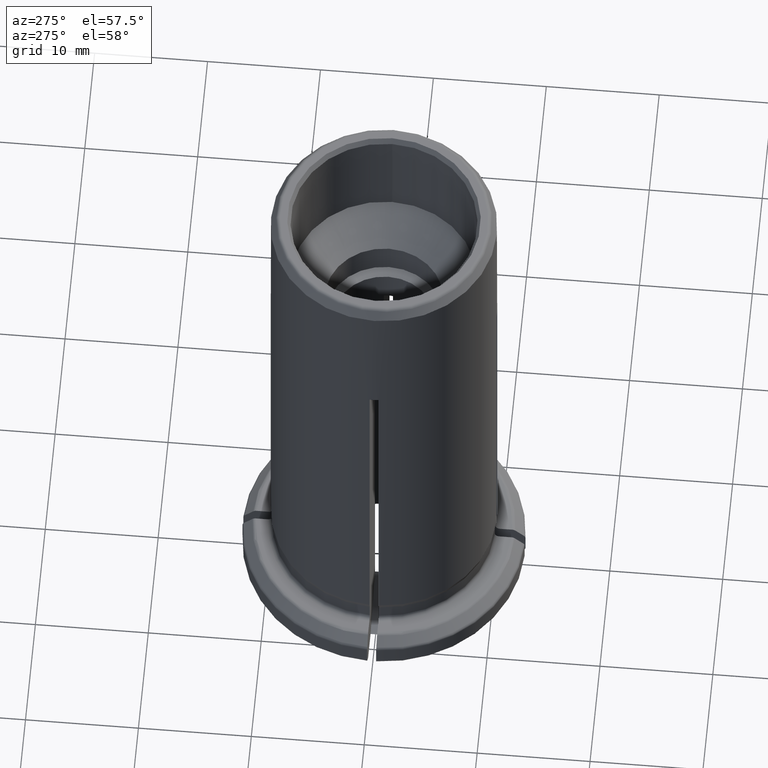
[diagram: clean part render]
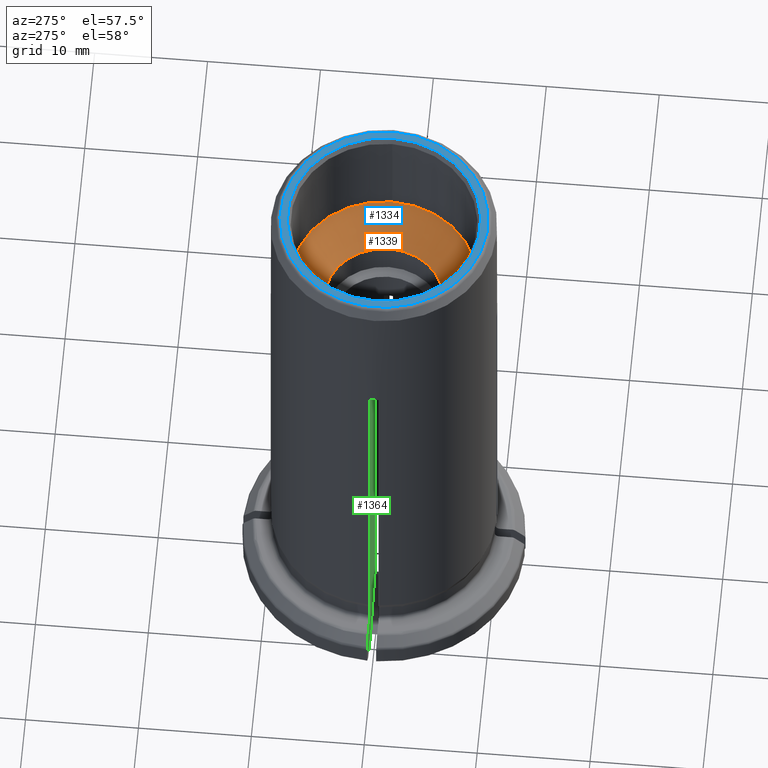
[diagram: same view with three faces highlighted in distinct colors, each labeled with its STEP entity id]
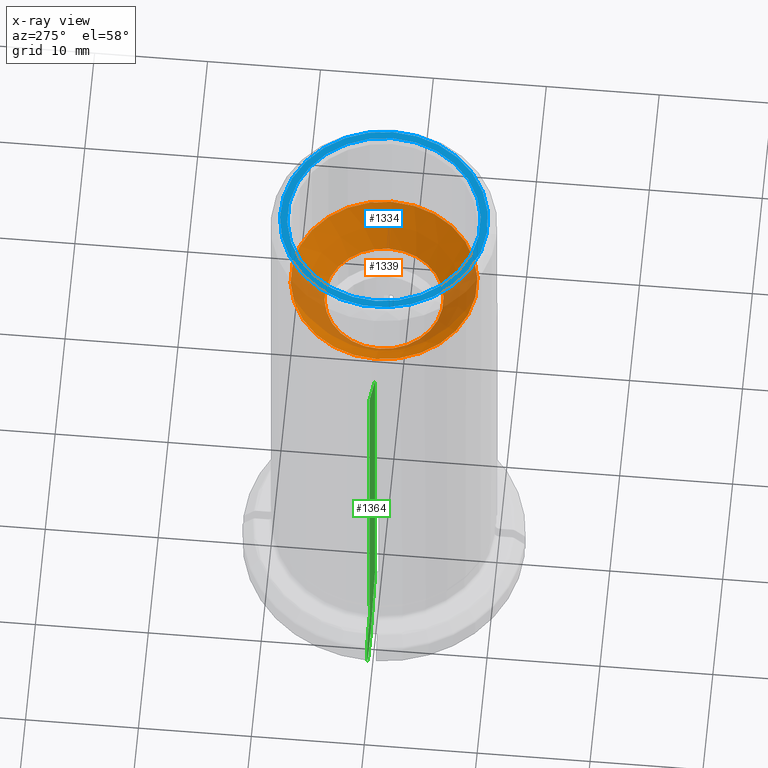
[diagram: x-ray of the same camera — body ghosted, the three highlighted faces saturated]
A machine part, auxiliary view with three faces highlighted in distinct colors.
The next image is the same camera in x-ray (body ghosted, the three faces saturated) — at least one of them is partly hidden behind the body in this view.
Their STEP definitions:

[orange] entity #1339 — the highlighted conical surface has half-angle 45 deg.
#467=ORIENTED_EDGE('',*,*,#842,.T.);
#468=ORIENTED_EDGE('',*,*,#843,.F.);
#842=EDGE_CURVE('',#1013,#1013,#1092,.F.);
#843=EDGE_CURVE('',#1014,#1014,#1093,.T.);
#1013=VERTEX_POINT('',#2352);
#1014=VERTEX_POINT('',#2354);
#1092=CIRCLE('',#1485,5.25);
#1093=CIRCLE('',#1486,8.25);
#1150=EDGE_LOOP('',(#467));
#1151=EDGE_LOOP('',(#468));
#1240=FACE_BOUND('',#1150,.T.);
#1241=FACE_BOUND('',#1151,.T.);
#1291=CONICAL_SURFACE('',#1484,8.25,0.785398163397448);
#1339=ADVANCED_FACE('',(#1240,#1241),#1291,.F.);
#1484=AXIS2_PLACEMENT_3D('',#2350,#1764,#1765);
#1485=AXIS2_PLACEMENT_3D('',#2351,#1766,#1767);
#1486=AXIS2_PLACEMENT_3D('',#2353,#1768,#1769);
#1764=DIRECTION('',(0.,0.,1.));
#1765=DIRECTION('',(-1.,0.,0.));
#1766=DIRECTION('',(0.,0.,1.));
#1767=DIRECTION('',(1.,0.,0.));
#1768=DIRECTION('',(0.,0.,-1.));
#1769=DIRECTION('',(-1.,0.,0.));
#2350=CARTESIAN_POINT('',(0.,0.,40.));
#2351=CARTESIAN_POINT('',(0.,0.,37.));
#2352=CARTESIAN_POINT('',(5.25,0.,37.));
#2353=CARTESIAN_POINT('',(0.,0.,40.));
#2354=CARTESIAN_POINT('',(-8.25,0.,40.));

[blue] entity #1334 — the highlighted planar face has unit normal (0, 0, 1).
#35=PLANE('',#1472);
#449=ORIENTED_EDGE('',*,*,#827,.T.);
#450=ORIENTED_EDGE('',*,*,#828,.T.);
#827=EDGE_CURVE('',#1001,#1001,#1085,.T.);
#828=EDGE_CURVE('',#1002,#1002,#1086,.F.);
#1001=VERTEX_POINT('',#2314);
#1002=VERTEX_POINT('',#2316);
#1085=CIRCLE('',#1473,9.18397459621556);
#1086=CIRCLE('',#1474,8.53867513459482);
#1144=EDGE_LOOP('',(#449));
#1145=EDGE_LOOP('',(#450));
#1234=FACE_BOUND('',#1144,.T.);
#1235=FACE_BOUND('',#1145,.T.);
#1334=ADVANCED_FACE('',(#1234,#1235),#35,.T.);
#1472=AXIS2_PLACEMENT_3D('',#2312,#1734,#1735);
#1473=AXIS2_PLACEMENT_3D('',#2313,#1736,#1737);
#1474=AXIS2_PLACEMENT_3D('',#2315,#1738,#1739);
#1734=DIRECTION('',(0.,0.,1.));
#1735=DIRECTION('',(1.,0.,0.));
#1736=DIRECTION('',(0.,0.,1.));
#1737=DIRECTION('',(1.,0.,0.));
#1738=DIRECTION('',(0.,0.,1.));
#1739=DIRECTION('',(1.,0.,0.));
#2312=CARTESIAN_POINT('',(0.,0.,50.));
#2313=CARTESIAN_POINT('',(0.,0.,50.));
#2314=CARTESIAN_POINT('',(9.18397459621556,0.,50.));
#2315=CARTESIAN_POINT('',(0.,0.,50.));
#2316=CARTESIAN_POINT('',(8.53867513459482,0.,50.));

[green] entity #1364 — the highlighted planar face has unit normal (-0, 1, 0).
#48=PLANE('',#1522);
#66=LINE('',#2154,#134);
#68=LINE('',#2172,#136);
#70=LINE('',#2178,#138);
#74=LINE('',#2272,#142);
#89=LINE('',#2428,#157);
#104=LINE('',#2460,#172);
#114=LINE('',#2483,#182);
#117=LINE('',#2487,#185);
#134=VECTOR('',#1648,1000.);
#136=VECTOR('',#1658,1000.);
#138=VECTOR('',#1664,1000.);
#142=VECTOR('',#1708,1000.);
#157=VECTOR('',#1809,1000.);
#172=VECTOR('',#1834,1000.);
#182=VECTOR('',#1866,1000.);
#185=VECTOR('',#1871,1000.);
#257=B_SPLINE_CURVE_WITH_KNOTS('',3,(#2124,#2125,#2126,#2127),
 .UNSPECIFIED.,.F.,.F.,(4,4),(0.0150523263753517,0.0156319134518823),
 .UNSPECIFIED.);
#259=B_SPLINE_CURVE_WITH_KNOTS('',3,(#2139,#2140,#2141,#2142),
 .UNSPECIFIED.,.F.,.F.,(4,4),(0.00233290544052612,0.00235797169027483),
 .UNSPECIFIED.);
#261=B_SPLINE_CURVE_WITH_KNOTS('',3,(#2160,#2161,#2162,#2163),
 .UNSPECIFIED.,.F.,.F.,(4,4),(0.00206367511561203,0.00268878382623626),
 .UNSPECIFIED.);
#263=B_SPLINE_CURVE_WITH_KNOTS('',3,(#2187,#2188,#2189,#2190),
 .UNSPECIFIED.,.F.,.F.,(4,4),(0.0119547672399306,0.0131793750144806),
 .UNSPECIFIED.);
#265=B_SPLINE_CURVE_WITH_KNOTS('',3,(#2199,#2200,#2201,#2202),
 .UNSPECIFIED.,.F.,.F.,(4,4),(0.0136580949055352,0.0147412372652292),
 .UNSPECIFIED.);
#267=B_SPLINE_CURVE_WITH_KNOTS('',3,(#2214,#2215,#2216,#2217),
 .UNSPECIFIED.,.F.,.F.,(4,4),(0.00226717180244416,0.00257932498733452),
 .UNSPECIFIED.);
#269=B_SPLINE_CURVE_WITH_KNOTS('',3,(#2223,#2224,#2225,#2226),
 .UNSPECIFIED.,.F.,.F.,(4,4),(0.00242430261798408,0.00273669044194609),
 .UNSPECIFIED.);
#271=B_SPLINE_CURVE_WITH_KNOTS('',3,(#2232,#2233,#2234,#2235),
 .UNSPECIFIED.,.F.,.F.,(4,4),(0.00237989966331175,0.00269207607619775),
 .UNSPECIFIED.);
#625=ORIENTED_EDGE('',*,*,#896,.F.);
#626=ORIENTED_EDGE('',*,*,#882,.T.);
#627=ORIENTED_EDGE('',*,*,#765,.T.);
#628=ORIENTED_EDGE('',*,*,#773,.T.);
#629=ORIENTED_EDGE('',*,*,#776,.T.);
#630=ORIENTED_EDGE('',*,*,#779,.T.);
#631=ORIENTED_EDGE('',*,*,#797,.T.);
#632=ORIENTED_EDGE('',*,*,#789,.T.);
#633=ORIENTED_EDGE('',*,*,#795,.T.);
#634=ORIENTED_EDGE('',*,*,#782,.T.);
#635=ORIENTED_EDGE('',*,*,#793,.T.);
#636=ORIENTED_EDGE('',*,*,#786,.T.);
#637=ORIENTED_EDGE('',*,*,#769,.T.);
#638=ORIENTED_EDGE('',*,*,#863,.F.);
#639=ORIENTED_EDGE('',*,*,#893,.F.);
#640=ORIENTED_EDGE('',*,*,#810,.F.);
#765=EDGE_CURVE('',#949,#950,#257,.T.);
#769=EDGE_CURVE('',#953,#954,#259,.T.);
#773=EDGE_CURVE('',#950,#957,#66,.F.);
#776=EDGE_CURVE('',#957,#959,#261,.T.);
#779=EDGE_CURVE('',#959,#961,#68,.T.);
#782=EDGE_CURVE('',#963,#964,#70,.F.);
#786=EDGE_CURVE('',#967,#953,#263,.T.);
#789=EDGE_CURVE('',#969,#970,#265,.T.);
#793=EDGE_CURVE('',#964,#967,#267,.T.);
#795=EDGE_CURVE('',#970,#963,#269,.T.);
#797=EDGE_CURVE('',#961,#969,#271,.T.);
#810=EDGE_CURVE('',#983,#985,#74,.F.);
#863=EDGE_CURVE('',#1026,#954,#89,.T.);
#882=EDGE_CURVE('',#1039,#949,#104,.F.);
#893=EDGE_CURVE('',#985,#1026,#114,.T.);
#896=EDGE_CURVE('',#1039,#983,#117,.T.);
#949=VERTEX_POINT('',#2128);
#950=VERTEX_POINT('',#2129);
#953=VERTEX_POINT('',#2143);
#954=VERTEX_POINT('',#2144);
#957=VERTEX_POINT('',#2155);
#959=VERTEX_POINT('',#2164);
#961=VERTEX_POINT('',#2173);
#963=VERTEX_POINT('',#2179);
#964=VERTEX_POINT('',#2180);
#967=VERTEX_POINT('',#2191);
#969=VERTEX_POINT('',#2203);
#970=VERTEX_POINT('',#2204);
#983=VERTEX_POINT('',#2270);
#985=VERTEX_POINT('',#2273);
#1026=VERTEX_POINT('',#2427);
#1039=VERTEX_POINT('',#2461);
#1185=EDGE_LOOP('',(#625,#626,#627,#628,#629,#630,#631,#632,#633,#634,#635,
#636,#637,#638,#639,#640));
#1275=FACE_BOUND('',#1185,.T.);
#1364=ADVANCED_FACE('',(#1275),#48,.F.);
#1522=AXIS2_PLACEMENT_3D('',#2488,#1872,#1873);
#1648=DIRECTION('',(0.,0.,1.));
#1658=DIRECTION('',(-1.,-1.22464679914735E-16,0.));
#1664=DIRECTION('',(0.,0.,1.));
#1708=DIRECTION('',(0.,0.,1.));
#1809=DIRECTION('',(-1.,-1.22464679914735E-16,0.));
#1834=DIRECTION('',(0.,0.,1.));
#1866=DIRECTION('',(-0.819152044288992,-1.00317192905352E-16,-0.573576436351046));
#1871=DIRECTION('',(0.707106781186548,8.65956056235494E-17,-0.707106781186547));
#1872=DIRECTION('',(-1.22464679914735E-16,1.,0.));
#1873=DIRECTION('',(1.,1.22464679914735E-16,0.));
#2124=CARTESIAN_POINT('',(-9.99199679743744,0.399999999999999,2.31339745962155));
#2125=CARTESIAN_POINT('',(-9.94195670841686,0.399999999999999,2.12679476651374));
#2126=CARTESIAN_POINT('',(-9.89191605842419,0.399999999999999,1.9401922238059));
#2127=CARTESIAN_POINT('',(-9.84187482139455,0.399999999999999,1.75358983848621));
#2128=CARTESIAN_POINT('',(-9.99199679743744,0.399999999999999,2.31339745962155));
#2129=CARTESIAN_POINT('',(-9.84187482139455,0.399999999999999,1.75358983848622));
#2139=CARTESIAN_POINT('',(-11.5102090330975,0.399999999999999,-3.98284271247462));
#2140=CARTESIAN_POINT('',(-11.5042927173416,0.399999999999999,-3.98875545894112));
#2141=CARTESIAN_POINT('',(-11.4981996748119,0.399999999999999,-3.99447437151653));
#2142=CARTESIAN_POINT('',(-11.4919304067841,0.399999999999999,-4.));
#2143=CARTESIAN_POINT('',(-11.5102090330975,0.399999999999999,-3.98284271247462));
#2144=CARTESIAN_POINT('',(-11.4919304067841,0.399999999999999,-4.));
#2154=CARTESIAN_POINT('',(-9.84187482139455,0.399999999999999,-5.37683679240941));
#2155=CARTESIAN_POINT('',(-9.84187482139455,0.399999999999999,0.399999999999999));
#2160=CARTESIAN_POINT('',(-9.84187482139454,0.399999999999999,0.399999999999999));
#2161=CARTESIAN_POINT('',(-9.84187482139454,0.399999999999999,0.191382527325471));
#2162=CARTESIAN_POINT('',(-10.0336800554712,0.399999999999999,1.66532020666656E-12));
#2163=CARTESIAN_POINT('',(-10.2421921481651,0.399999999999999,-9.40090021703965E-15));
#2164=CARTESIAN_POINT('',(-10.2421921481658,0.399999999999999,-1.88710476666363E-11));
#2172=CARTESIAN_POINT('',(10.25,0.400000000000001,-3.52365706057789E-16));
#2173=CARTESIAN_POINT('',(-11.3272541635742,0.399999999999999,-3.25260651745651E-16));
#2178=CARTESIAN_POINT('',(-12.4935983607606,0.399999999999999,-5.37683679240941));
#2179=CARTESIAN_POINT('',(-12.4935983607608,0.399999999999999,-1.16568542494926));
#2180=CARTESIAN_POINT('',(-12.4935983607606,0.399999999999999,-2.83431457505076));
#2187=CARTESIAN_POINT('',(-12.376380474189,0.399999999999999,-3.11715728752538));
#2188=CARTESIAN_POINT('',(-12.0876623255086,0.399999999999999,-3.40572476276848));
#2189=CARTESIAN_POINT('',(-11.7989389378696,0.399999999999999,-3.69428699728669));
#2190=CARTESIAN_POINT('',(-11.5102090330975,0.399999999999999,-3.98284271247462));
#2191=CARTESIAN_POINT('',(-12.376380474189,0.399999999999999,-3.11715728752538));
#2199=CARTESIAN_POINT('',(-11.6102688790184,0.399999999999999,-0.117157287525383));
#2200=CARTESIAN_POINT('',(-11.8656440941185,0.399999999999999,-0.372381077559876));
#2201=CARTESIAN_POINT('',(-12.1210143360922,0.399999999999999,-0.627609842390078));
#2202=CARTESIAN_POINT('',(-12.376380474189,0.399999999999999,-0.882842712474619));
#2203=CARTESIAN_POINT('',(-11.6102688790184,0.399999999999999,-0.117157287525383));
#2204=CARTESIAN_POINT('',(-12.376380474189,0.399999999999999,-0.882842712474621));
#2214=CARTESIAN_POINT('',(-12.4935983607606,0.399999999999999,-2.83431457505076));
#2215=CARTESIAN_POINT('',(-12.4935983607606,0.399999999999999,-2.93919527797686));
#2216=CARTESIAN_POINT('',(-12.4500006726314,0.399999999999999,-3.04357550928067));
#2217=CARTESIAN_POINT('',(-12.376380474189,0.399999999999999,-3.11715728752538));
#2223=CARTESIAN_POINT('',(-12.376380474189,0.399999999999999,-0.88284271247462));
#2224=CARTESIAN_POINT('',(-12.4509754919092,0.399999999999999,-0.957398801267895));
#2225=CARTESIAN_POINT('',(-12.4935983607606,0.399999999999999,-1.06118455555229));
#2226=CARTESIAN_POINT('',(-12.4935983607606,0.399999999999999,-1.16568542494928));
#2232=CARTESIAN_POINT('',(-11.3272541635742,0.399999999999999,7.91151168650601E-15));
#2233=CARTESIAN_POINT('',(-11.431586457316,0.399999999999999,8.36398088464724E-15));
#2234=CARTESIAN_POINT('',(-11.5366384610197,0.399999999999999,-4.35705287786355E-02));
#2235=CARTESIAN_POINT('',(-11.6102688790184,0.399999999999999,-0.117157287525378));
#2270=CARTESIAN_POINT('',(-4.482186966203,0.399999999999999,30.482186966203));
#2272=CARTESIAN_POINT('',(-4.48218696620299,0.399999999999999,-4.1));
#2273=CARTESIAN_POINT('',(-4.48218696620299,0.399999999999999,-0.8250636417791));
#2427=CARTESIAN_POINT('',(-9.01646599772924,0.399999999999999,-4.));
#2428=CARTESIAN_POINT('',(-9.01646599772924,0.399999999999999,-4.));
#2460=CARTESIAN_POINT('',(-9.99199679743744,0.399999999999999,60.));
#2461=CARTESIAN_POINT('',(-9.99199679743744,0.399999999999999,35.9919967974374));
#2483=CARTESIAN_POINT('',(7.29902494546516E-15,0.4,2.31339745962155));
#2487=CARTESIAN_POINT('',(-12.5,0.399999999999999,38.5));
#2488=CARTESIAN_POINT('',(-4.89858719658941E-17,0.4,0.));